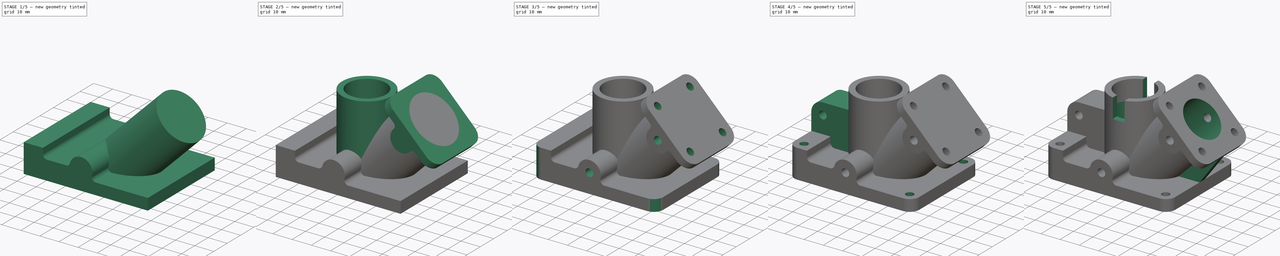
[diagram: build sequence overview — one tinted view per stage of 5, left to right]
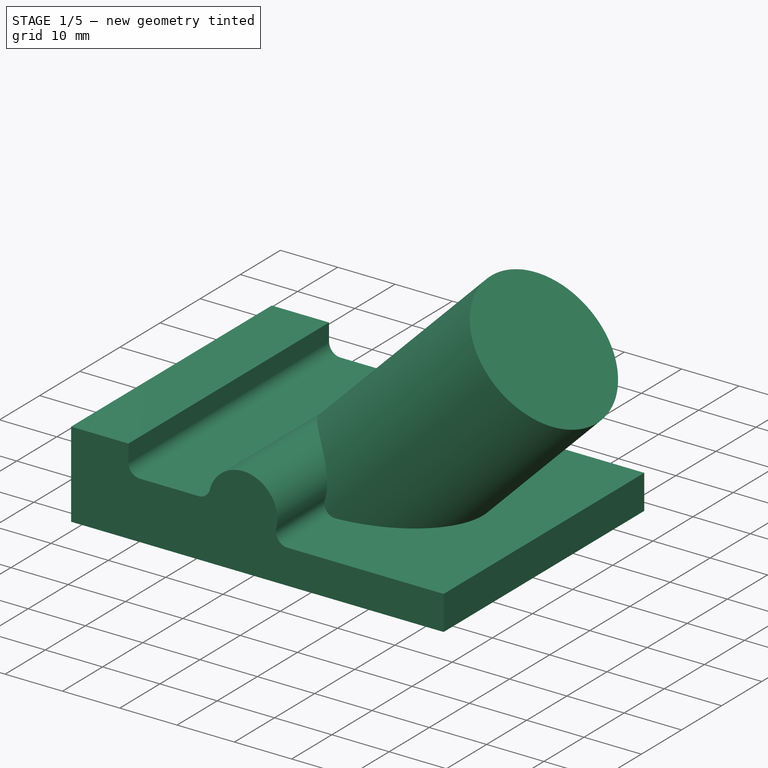
[diagram: stage 1 of 5 — iso view after this stage's code; geometry added in this stage tinted green]
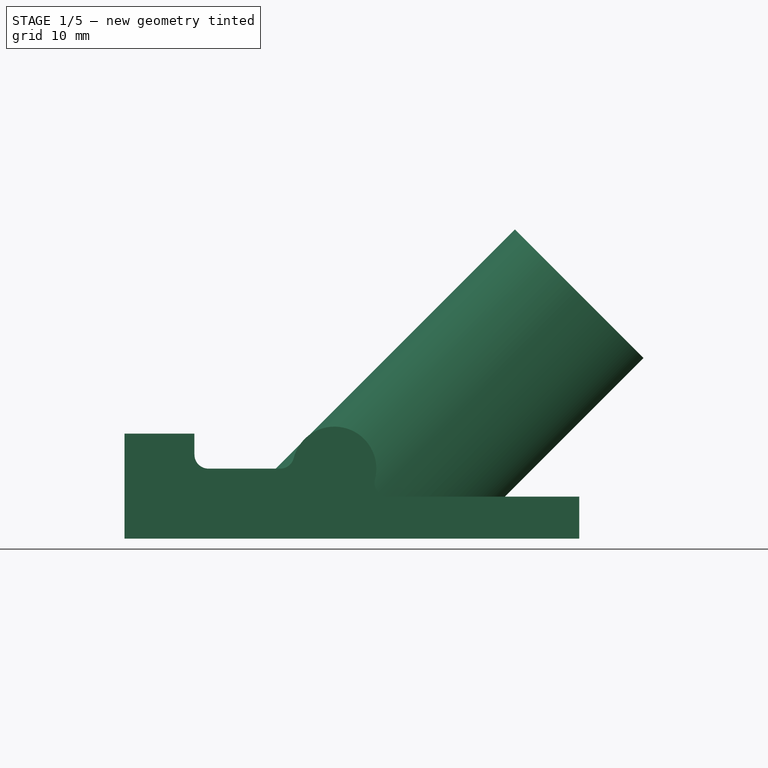
[diagram: stage 1 of 5 — front view after this stage's code; geometry added in this stage tinted green]
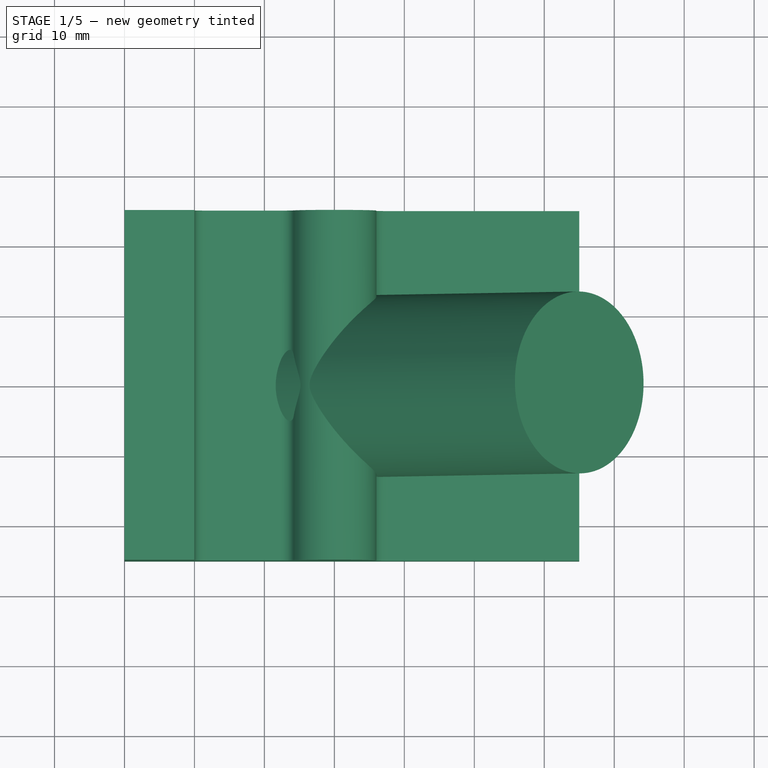
[diagram: stage 1 of 5 — top view after this stage's code; geometry added in this stage tinted green]
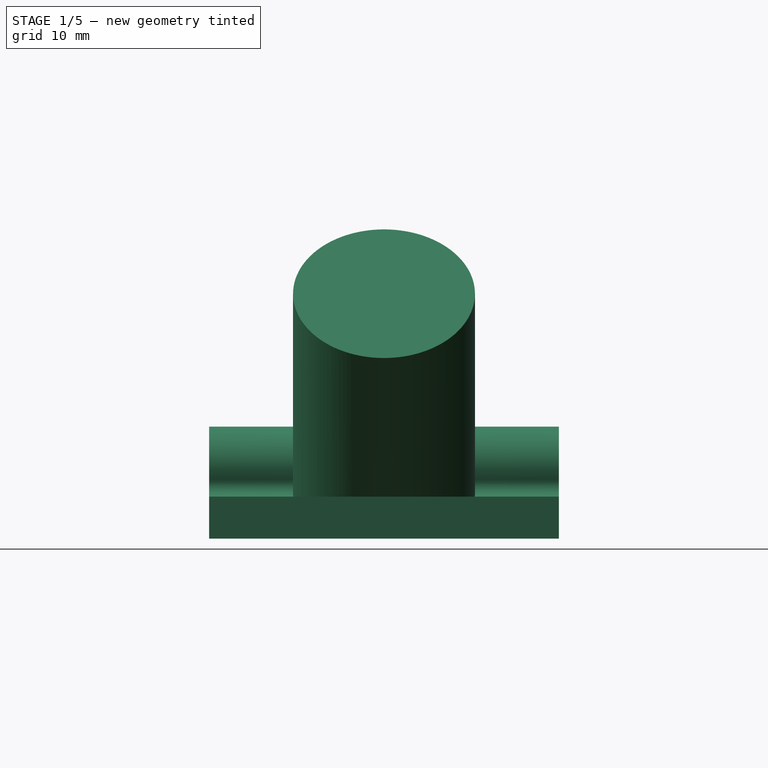
[diagram: stage 1 of 5 — right view after this stage's code; geometry added in this stage tinted green]
FCSTD DOCUMENT  (FreeCAD 0.21R33771 (Git))
Label: ex37
License: All rights reserved
LicenseURL: https://en.wikipedia.org/wiki/All_rights_reserved
objects: Sketcher::SketchObject×15, PartDesign::Pocket×8, PartDesign::Pad×6, PartDesign::Fillet×4, PartDesign::Plane×1, PartDesign::Body×1
note: 53 computed .brp shape members not serialized (recipe doc carries the construction recipe); baked Part::Feature solids carry a one-line shape summary decoded from their .brp

FEATURE [Sketcher::SketchObject] Sketch
  FullyConstrained = true
  MapMode = 5
  Placement = pos=(0,0,0) rot=(1,0,0;1.5708rad)
  Support = -> [XZ_Plane]
  sketch-geometry (8):
    g0: LineSegment StartX=0 StartY=0 StartZ=0 EndX=0 EndY=15 EndZ=0
    g1: LineSegment StartX=0 StartY=15 StartZ=0 EndX=10 EndY=15 EndZ=0
    g2: LineSegment StartX=10 StartY=15 StartZ=0 EndX=10 EndY=10 EndZ=0
    g3: LineSegment StartX=10 StartY=10 StartZ=0 EndX=24 EndY=10 EndZ=0
    g4: LineSegment StartX=34.4721 StartY=6 StartZ=0 EndX=65 EndY=6 EndZ=0
    g5: LineSegment StartX=65 StartY=6 StartZ=0 EndX=65 EndY=0 EndZ=0
    g6: LineSegment StartX=65 StartY=0 StartZ=0 EndX=0 EndY=0 EndZ=0
    g7: ArcOfCircle CenterX=30 CenterY=10 CenterZ=0 NormalX=0 NormalY=0 NormalZ=1 AngleXU=0 Radius=6 StartAngle=5.55346 EndAngle=9.42478
  constraints (24):
    c: Coincident(g-1,g0)
    c: PointOnObject(g0,g-2)
    c: Coincident(g0,g1)
    c: Horizontal(g1)
    c: Coincident(g1,g2)
    c: Vertical(g2)
    c: Coincident(g2,g3)
    c: Horizontal(g3)
    c: Horizontal(g4)
    c: Coincident(g4,g5)
    c: PointOnObject(g5,g-1)
    c: Vertical(g5)
    c: Coincident(g5,g6)
    c: Coincident(g6,g0)
    c: DistanceX(g6,g6) = 65
    c: Distance(g2,g6) = 10
    c: DistanceY(g0,g0) = 15
    c: DistanceX(g1,g1) = 10
    c: Distance(g7,g0) = 30
    c: Radius(g7) = 6
    c: Coincident(g7,g3)
    c: Coincident(g7,g4)
    c: DistanceY(g5,g5) = 6
    c: Horizontal(g7,g3)
FEATURE [PartDesign::Pad] Pad
  Direction = (0,-1,2e-16)
  Length = 50
  Length2 = 10
  Midplane = true
  Placement = pos=(0,0,0) rot=(1,0,0;1.5708rad)
  Profile = -> Sketch
  ReferenceAxis = -> Sketch [N_Axis]
  Type = 0
FEATURE [Sketcher::SketchObject] Sketch001
  FullyConstrained = true
  MapMode = 5
  Placement = pos=(0,0,0) rot=(1,0,0;1.5708rad)
  Support = -> [XZ_Plane]
  sketch-geometry (1):
    g0: LineSegment StartX=30 StartY=0 StartZ=0 EndX=65 EndY=35 EndZ=0
  constraints (4):
    c: PointOnObject(g0,g-1)
    c: DistanceY(g-1,g0) = 35
    c: Angle(g0,g-2) = 0.785398
    c: DistanceX(g-1,g0) = 30
FEATURE [PartDesign::Plane] DatumPlane
  Length = 65.7522
  MapMode = 7
  Placement = pos=(65,7.8e-15,35) rot=(0.678598,-0.678598,-0.281085;2.59356rad)
  ResizeMode = 0
  Support = -> [Sketch001]
  Width = 139.818
FEATURE [PartDesign::Fillet] Fillet
  Base = -> Pad [Edge1,Edge20]
  BaseFeature = -> Pad
  Placement = pos=(0,0,0) rot=(1,0,0;1.5708rad)
  Radius = 2
  SupportTransform = false
  UseAllEdges = false
FEATURE [PartDesign::Fillet] Fillet001
  Base = -> Fillet [Edge29]
  BaseFeature = -> Fillet
  Placement = pos=(0,0,0) rot=(1,0,0;1.5708rad)
  Radius = 2
  SupportTransform = false
  UseAllEdges = false
FEATURE [Sketcher::SketchObject] Sketch002
  FullyConstrained = true
  MapMode = 5
  Placement = pos=(65,7.8e-15,35) rot=(0.678598,-0.678598,-0.281085;2.59356rad)
  Support = -> [DatumPlane]
  sketch-geometry (1):
    g0: Circle CenterX=0 CenterY=0 CenterZ=0 NormalX=0 NormalY=0 NormalZ=1 AngleXU=0 Radius=13
  constraints (2):
    c: Coincident(g0,g-1)
    c: Radius(g0) = 13
FEATURE [PartDesign::Pad] Pad001
  BaseFeature = -> Fillet001
  Direction = (-0.707107,0,-0.707107)
  Length = 10
  Length2 = 10
  Placement = pos=(0,0,0) rot=(1,0,0;1.5708rad)
  Profile = -> Sketch002
  ReferenceAxis = -> Sketch002 [N_Axis]
  Type = 3
  UpToFace = -> Fillet001 [Face11]
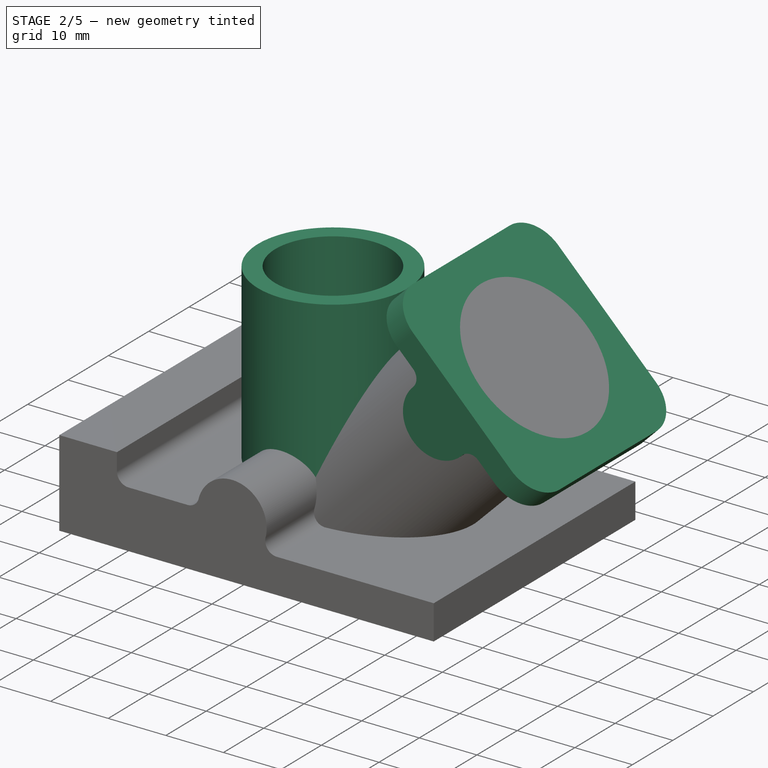
[diagram: stage 2 of 5 — iso view after this stage's code; geometry added in this stage tinted green]
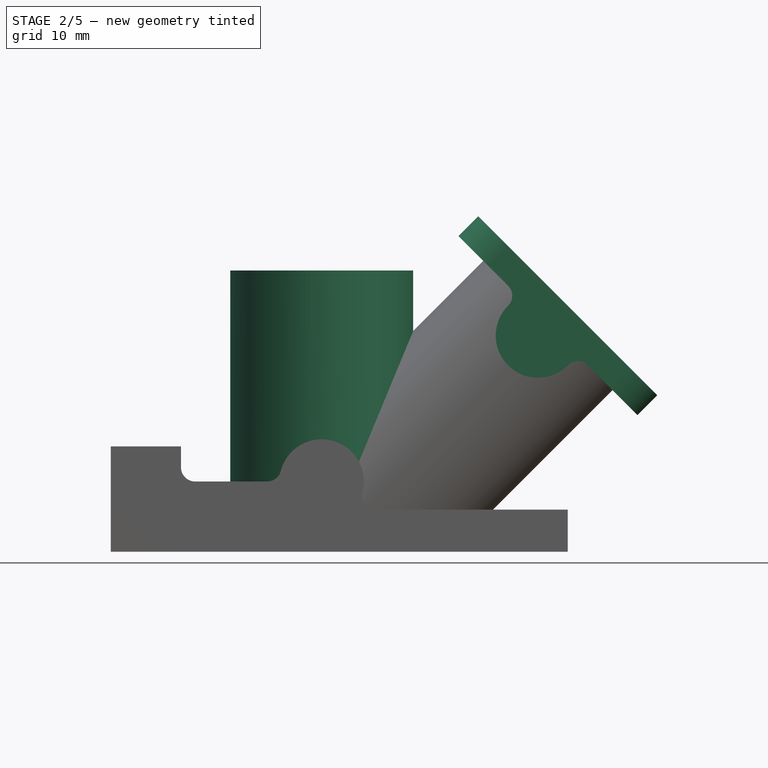
[diagram: stage 2 of 5 — front view after this stage's code; geometry added in this stage tinted green]
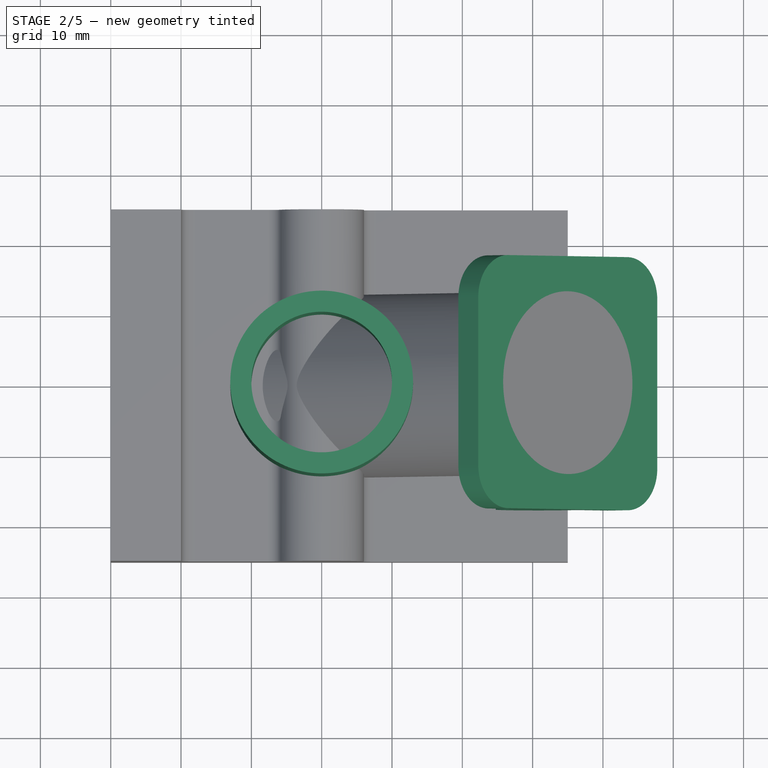
[diagram: stage 2 of 5 — top view after this stage's code; geometry added in this stage tinted green]
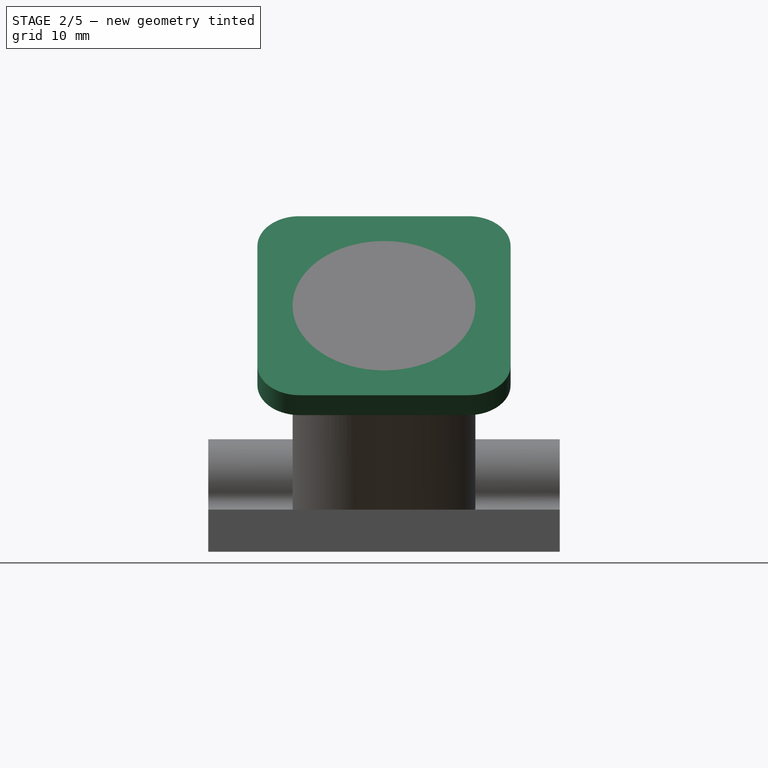
[diagram: stage 2 of 5 — right view after this stage's code; geometry added in this stage tinted green]
FEATURE [Sketcher::SketchObject] Sketch003
  FullyConstrained = true
  MapMode = 5
  Support = -> [XY_Plane]
  sketch-geometry (2):
    g0: Circle CenterX=30 CenterY=0 CenterZ=0 NormalX=0 NormalY=0 NormalZ=1 AngleXU=0 Radius=13
    g1: Circle CenterX=30 CenterY=0 CenterZ=0 NormalX=0 NormalY=0 NormalZ=1 AngleXU=0 Radius=10
  constraints (5):
    c: PointOnObject(g0,g-1)
    c: DistanceX(g-1,g0) = 30
    c: Radius(g0) = 13
    c: Coincident(g1,g0)
    c: Radius(g1) = 10
FEATURE [PartDesign::Pad] Pad002
  BaseFeature = -> Pad001
  Direction = (0,0,1)
  Length = 40
  Length2 = 10
  Placement = pos=(0,0,0) rot=(1,0,0;1.5708rad)
  Profile = -> Sketch003
  ReferenceAxis = -> Sketch003 [N_Axis]
  Type = 0
FEATURE [Sketcher::SketchObject] Sketch004
  ExternalGeometry = -> [Pad002,Sketch001]
  FullyConstrained = true
  MapMode = 5
  Placement = pos=(0,0,0) rot=(1,0,0;1.5708rad)
  Support = -> [XZ_Plane]
  sketch-geometry (8):
    g0: LineSegment StartX=52.2721 StartY=47.7279 StartZ=0 EndX=77.7279 EndY=22.2721 EndZ=0
    g1: LineSegment StartX=77.7279 StartY=22.2721 StartZ=0 EndX=74.8995 EndY=19.4437 EndZ=0
    g2: LineSegment StartX=74.8995 StartY=19.4437 StartZ=0 EndX=67.8284 EndY=26.5147 EndZ=0
    g3: LineSegment StartX=49.4437 StartY=44.8995 StartZ=0 EndX=52.2721 EndY=47.7279 EndZ=0
    g4: ArcOfCircle CenterX=60.7574 CenterY=30.7574 CenterZ=0 NormalX=0 NormalY=0 NormalZ=1 AngleXU=0 Radius=6 StartAngle=2.35619 EndAngle=5.49779
    g5: LineSegment StartX=56.5147 StartY=37.8284 StartZ=0 EndX=49.4437 EndY=44.8995 EndZ=0
    g6: ArcOfCircle CenterX=55.1005 CenterY=36.4142 CenterZ=0 NormalX=0 NormalY=0 NormalZ=1 AngleXU=0 Radius=2 StartAngle=5.49779 EndAngle=7.06858
    g7: ArcOfCircle CenterX=66.4142 CenterY=25.1005 CenterZ=0 NormalX=0 NormalY=0 NormalZ=1 AngleXU=0 Radius=2 StartAngle=0.785398 EndAngle=2.35619
  constraints (22):
    c: Coincident(g0,g1)
    c: Coincident(g1,g2)
    c: Coincident(g5,g3)
    c: Coincident(g3,g0)
    c: PointOnObject(g-3,g0)
    c: Parallel(g1,g3)
    c: Parallel(g2,g0)
    c: Perpendicular(g2,g1)
    c: Symmetric(g0,g0,g-4)
    c: PointOnObject(g4,g-4)
    c: Radius(g4) = 6
    c: Distance(g4,g-4) = 6
    c: Distance(g1) = 4
    c: Tangent(g4,g6) = 1.5708
    c: Tangent(g5,g6) = -1.5708
    c: Tangent(g4,g7) = 1.5708
    c: Tangent(g2,g7) = -1.5708
    c: Equal(g7,g6)
    c: Parallel(g5,g2)
    c: Distance(g3) = 4
    c: Radius(g6) = 2
    c: Distance(g0) = 36
FEATURE [PartDesign::Pad] Pad003
  BaseFeature = -> Pad002
  Direction = (0,-1,2e-16)
  Length = 36
  Length2 = 10
  Midplane = true
  Placement = pos=(0,0,0) rot=(1,0,0;1.5708rad)
  Profile = -> Sketch004
  ReferenceAxis = -> Sketch004 [N_Axis]
  Type = 0
FEATURE [PartDesign::Fillet] Fillet002
  Base = -> Pad003 [Edge98,Edge101,Edge103,Edge100]
  BaseFeature = -> Pad003
  Placement = pos=(0,0,0) rot=(1,0,0;1.5708rad)
  Radius = 6
  SupportTransform = false
  UseAllEdges = false
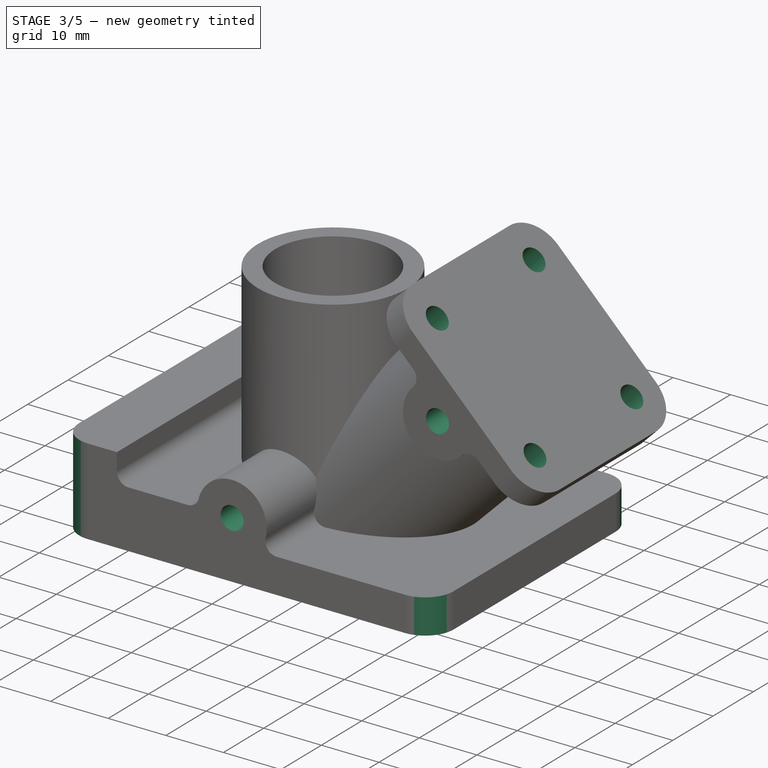
[diagram: stage 3 of 5 — iso view after this stage's code; geometry added in this stage tinted green]
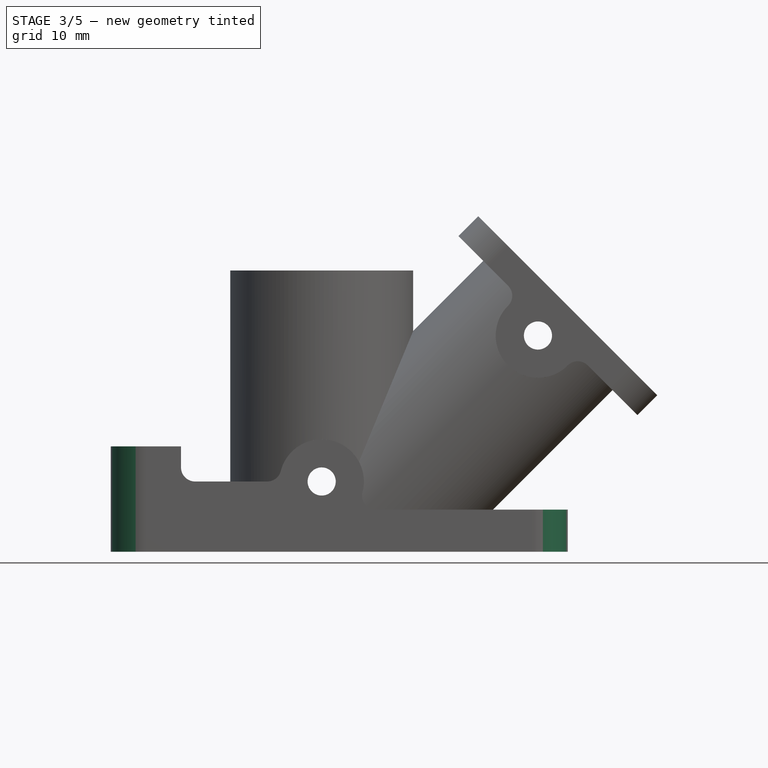
[diagram: stage 3 of 5 — front view after this stage's code; geometry added in this stage tinted green]
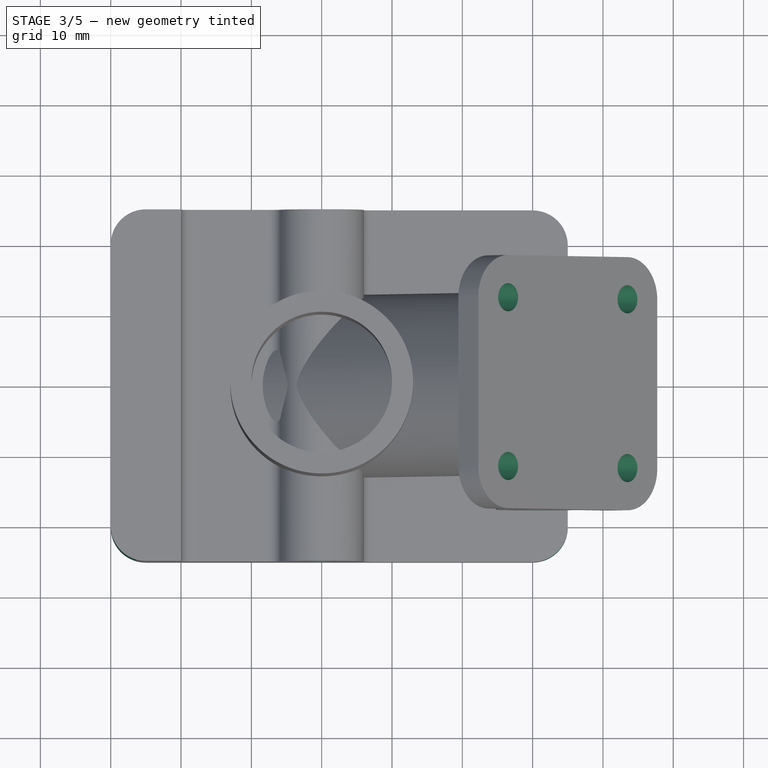
[diagram: stage 3 of 5 — top view after this stage's code; geometry added in this stage tinted green]
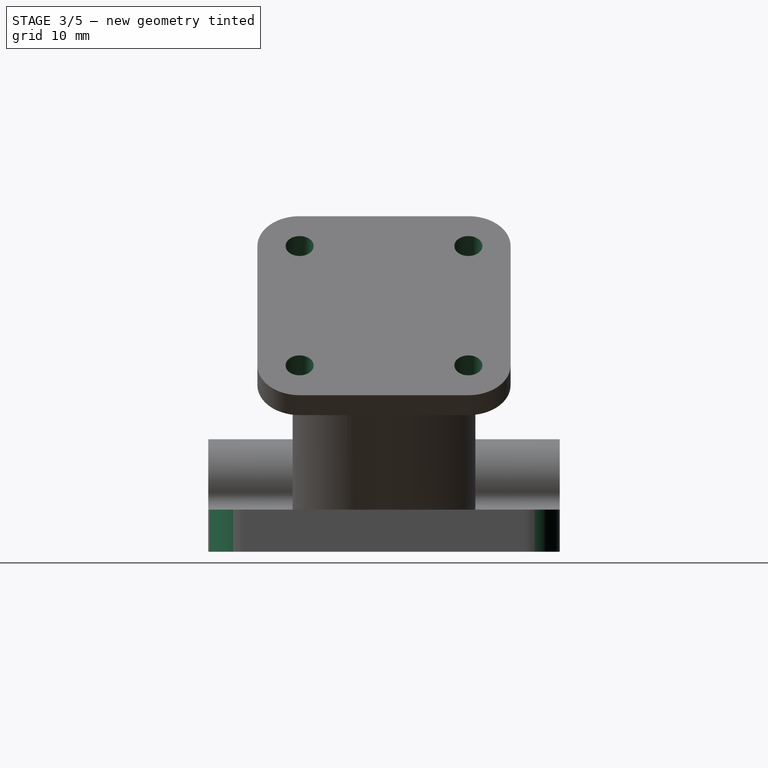
[diagram: stage 3 of 5 — right view after this stage's code; geometry added in this stage tinted green]
FEATURE [Sketcher::SketchObject] Sketch005
  ExternalGeometry = -> [Fillet002]
  FullyConstrained = true
  MapMode = 5
  Placement = pos=(50,1.11e-14,50) rot=(0.382683,0,0.92388;3.14159rad)
  Support = -> [Fillet002]
  sketch-geometry (4):
    g0: Circle CenterX=-33.2132 CenterY=12 CenterZ=0 NormalX=0 NormalY=0 NormalZ=1 AngleXU=0 Radius=2
    g1: Circle CenterX=-9.2132 CenterY=12 CenterZ=0 NormalX=0 NormalY=0 NormalZ=1 AngleXU=0 Radius=2
    g2: Circle CenterX=-9.2132 CenterY=-12 CenterZ=0 NormalX=0 NormalY=0 NormalZ=1 AngleXU=0 Radius=2
    g3: Circle CenterX=-33.2132 CenterY=-12 CenterZ=0 NormalX=0 NormalY=0 NormalZ=1 AngleXU=0 Radius=2
  constraints (8):
    c: Coincident(g0,g-4)
    c: Coincident(g1,g-3)
    c: Coincident(g2,g-6)
    c: Coincident(g3,g-5)
    c: Equal(g0,g1)
    c: Equal(g1,g2)
    c: Equal(g2,g3)
    c: Radius(g0) = 2
FEATURE [PartDesign::Pocket] Pocket
  BaseFeature = -> Fillet002
  Direction = (-0.707107,-2e-16,-0.707107)
  Length = 5
  Length2 = 5
  Placement = pos=(0,0,0) rot=(1,0,0;1.5708rad)
  Profile = -> Sketch005
  ReferenceAxis = -> Sketch005 [N_Axis]
  Type = 0
FEATURE [Sketcher::SketchObject] Sketch006
  ExternalGeometry = -> [Pocket]
  FullyConstrained = true
  MapMode = 5
  Placement = pos=(0,-18,4e-15) rot=(1,0,0;1.5708rad)
  Support = -> [Pocket]
  sketch-geometry (1):
    g0: Circle CenterX=60.7574 CenterY=30.7574 CenterZ=0 NormalX=0 NormalY=0 NormalZ=1 AngleXU=0 Radius=2
  constraints (2):
    c: Coincident(g0,g-3)
    c: Radius(g0) = 2
FEATURE [PartDesign::Pocket] Pocket001
  BaseFeature = -> Pocket
  Direction = (0,1,-2e-16)
  Length = 5
  Length2 = 5
  Placement = pos=(0,0,0) rot=(1,0,0;1.5708rad)
  Profile = -> Sketch006
  ReferenceAxis = -> Sketch006 [N_Axis]
  Type = 1
FEATURE [Sketcher::SketchObject] Sketch007
  ExternalGeometry = -> [Pocket001]
  FullyConstrained = true
  MapMode = 5
  Placement = pos=(0,-25,5.6e-15) rot=(1,0,0;1.5708rad)
  Support = -> [Pocket001]
  sketch-geometry (1):
    g0: Circle CenterX=30 CenterY=10 CenterZ=0 NormalX=0 NormalY=0 NormalZ=1 AngleXU=0 Radius=2
  constraints (2):
    c: Coincident(g0,g-3)
    c: Radius(g0) = 2
FEATURE [PartDesign::Pocket] Pocket002
  BaseFeature = -> Pocket001
  Direction = (0,1,-2e-16)
  Length = 5
  Length2 = 5
  Placement = pos=(0,0,0) rot=(1,0,0;1.5708rad)
  Profile = -> Sketch007
  ReferenceAxis = -> Sketch007 [N_Axis]
  Type = 1
FEATURE [PartDesign::Fillet] Fillet003
  Base = -> Pocket002 [Edge115,Edge104,Edge106,Edge113]
  BaseFeature = -> Pocket002
  Placement = pos=(0,0,0) rot=(1,0,0;1.5708rad)
  Radius = 5
  SupportTransform = false
  UseAllEdges = false
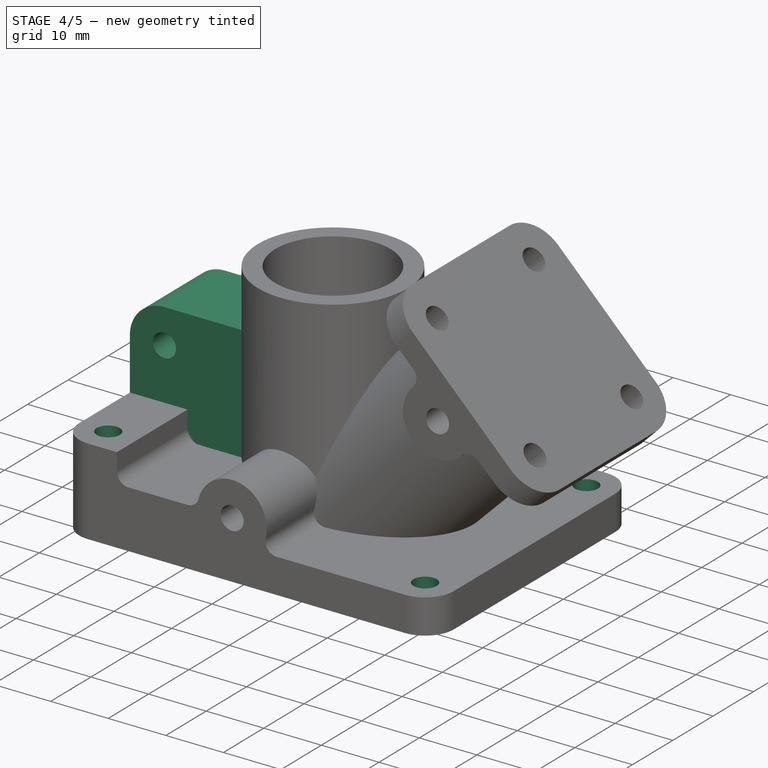
[diagram: stage 4 of 5 — iso view after this stage's code; geometry added in this stage tinted green]
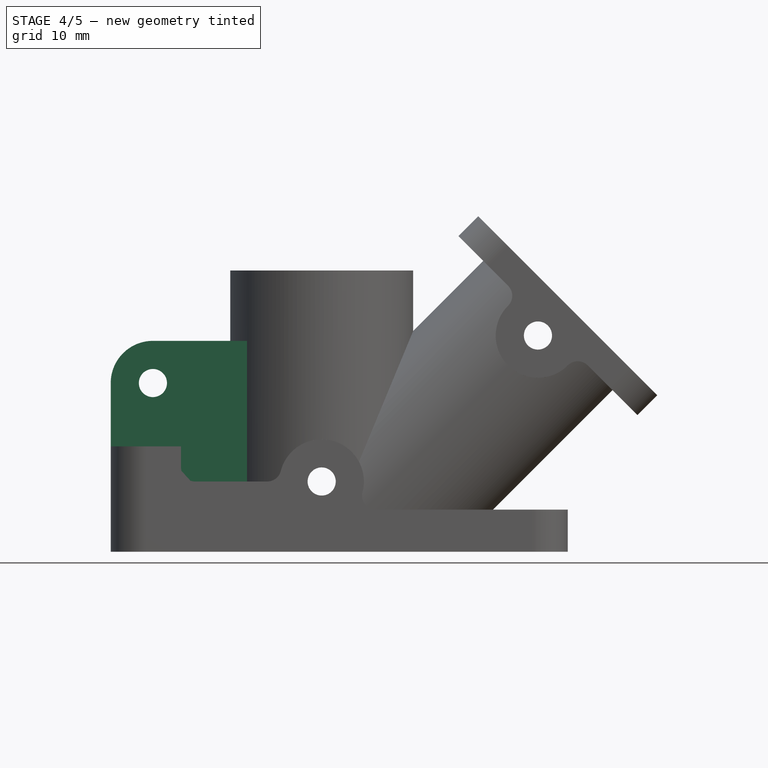
[diagram: stage 4 of 5 — front view after this stage's code; geometry added in this stage tinted green]
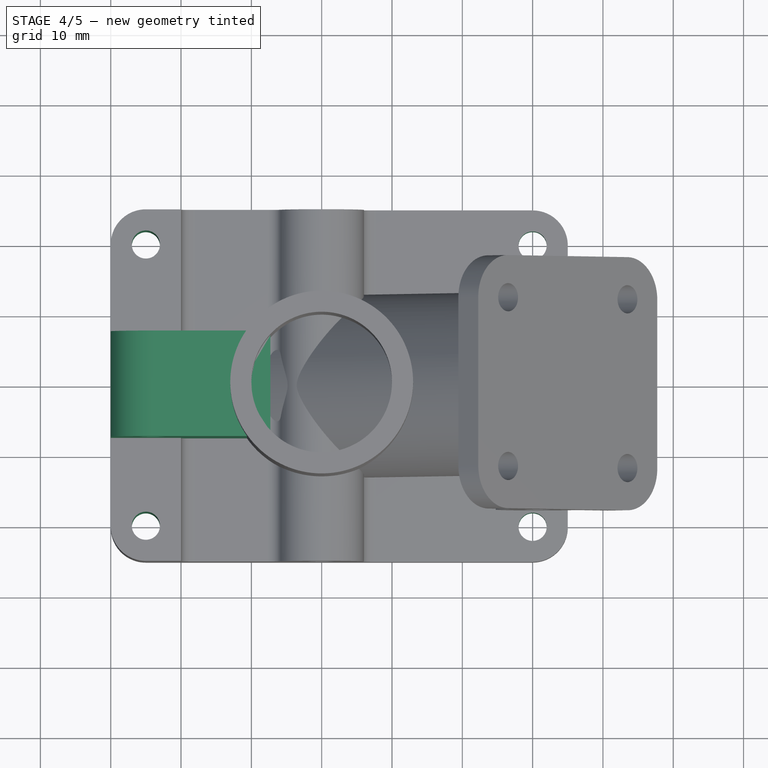
[diagram: stage 4 of 5 — top view after this stage's code; geometry added in this stage tinted green]
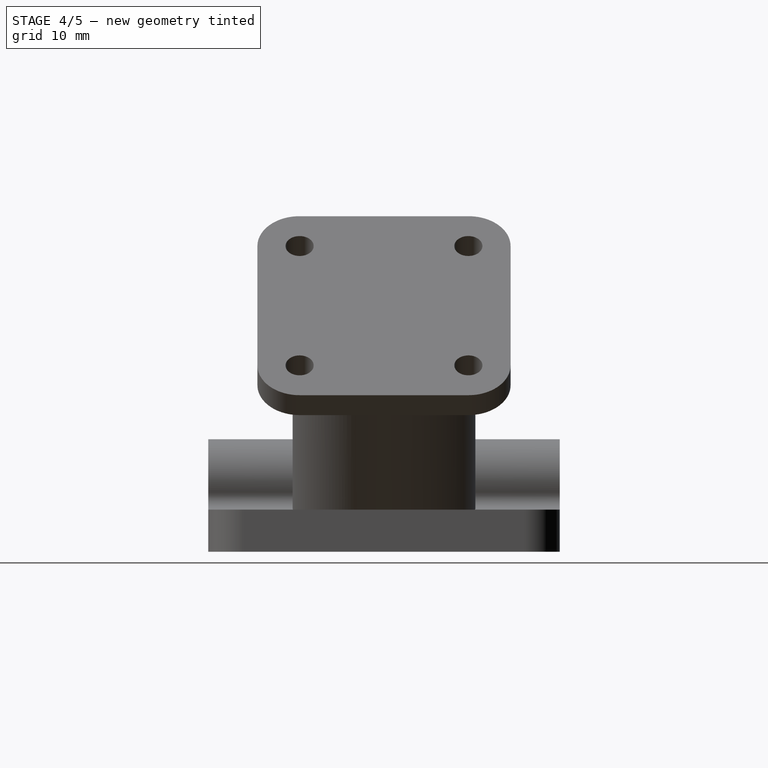
[diagram: stage 4 of 5 — right view after this stage's code; geometry added in this stage tinted green]
FEATURE [Sketcher::SketchObject] Sketch008
  ExternalGeometry = -> [Fillet003]
  FullyConstrained = true
  MapMode = 5
  Placement = pos=(0,3.3e-15,15) rot=(0,0,1;3.14159rad)
  Support = -> [Fillet003]
  sketch-geometry (2):
    g0: Circle CenterX=-5 CenterY=20 CenterZ=0 NormalX=0 NormalY=0 NormalZ=1 AngleXU=0 Radius=2
    g1: Circle CenterX=-5 CenterY=-20 CenterZ=0 NormalX=0 NormalY=0 NormalZ=1 AngleXU=0 Radius=2
  constraints (4):
    c: Coincident(g0,g-3)
    c: Coincident(g1,g-4)
    c: Equal(g1,g0)
    c: Radius(g0) = 2
FEATURE [PartDesign::Pocket] Pocket003
  BaseFeature = -> Fillet003
  Direction = (0,-2e-16,-1)
  Length = 18
  Length2 = 5
  Placement = pos=(0,0,0) rot=(1,0,0;1.5708rad)
  Profile = -> Sketch008
  ReferenceAxis = -> Sketch008 [N_Axis]
  Type = 0
FEATURE [Sketcher::SketchObject] Sketch009
  ExternalGeometry = -> [Pocket003]
  FullyConstrained = true
  MapMode = 5
  Placement = pos=(0,1.3e-15,6) rot=(0,0,1;3.14159rad)
  Support = -> [Pocket003]
  sketch-geometry (2):
    g0: Circle CenterX=-60 CenterY=20 CenterZ=0 NormalX=0 NormalY=0 NormalZ=1 AngleXU=0 Radius=2
    g1: Circle CenterX=-60 CenterY=-20 CenterZ=0 NormalX=0 NormalY=0 NormalZ=1 AngleXU=0 Radius=2
  constraints (4):
    c: Coincident(g0,g-3)
    c: Coincident(g1,g-4)
    c: Equal(g1,g0)
    c: Radius(g0) = 2
FEATURE [PartDesign::Pocket] Pocket004
  BaseFeature = -> Pocket003
  Direction = (0,-2e-16,-1)
  Length = 11
  Length2 = 5
  Placement = pos=(0,0,0) rot=(1,0,0;1.5708rad)
  Profile = -> Sketch009
  ReferenceAxis = -> Sketch009 [N_Axis]
  Type = 0
FEATURE [Sketcher::SketchObject] Sketch010
  FullyConstrained = false
  MapMode = 5
  Placement = pos=(0,0,0) rot=(1,0,0;1.5708rad)
  Support = -> [XZ_Plane]
  sketch-geometry (6):
    g0: LineSegment StartX=6 StartY=30 StartZ=0 EndX=22.6982 EndY=30 EndZ=0
    g1: LineSegment StartX=22.6982 StartY=30 StartZ=0 EndX=22.6982 EndY=0 EndZ=0
    g2: LineSegment StartX=22.6982 StartY=0 StartZ=0 EndX=0 EndY=0 EndZ=0
    g3: LineSegment StartX=0 StartY=0 StartZ=0 EndX=0 EndY=24 EndZ=0
    g4: ArcOfCircle CenterX=6 CenterY=24 CenterZ=0 NormalX=0 NormalY=0 NormalZ=1 AngleXU=0 Radius=6 StartAngle=1.5708 EndAngle=3.14159
    g5: Circle CenterX=6 CenterY=24 CenterZ=0 NormalX=0 NormalY=0 NormalZ=1 AngleXU=0 Radius=2
  constraints (14):
    c: Coincident(g0,g1)
    c: Coincident(g1,g2)
    c: Coincident(g2,g3)
    c: Horizontal(g0)
    c: Horizontal(g2)
    c: Vertical(g1)
    c: PointOnObject(g1,g-1)
    c: Tangent(g0,g4) = 1.5708
    c: Tangent(g3,g4) = 1.5708
    c: Radius(g4) = 6
    c: Tangent(g3,g-2)
    c: DistanceY(g2,g0) = 30
    c: Coincident(g5,g4)
    c: Radius(g5) = 2
FEATURE [PartDesign::Pad] Pad004
  BaseFeature = -> Pocket004
  Direction = (0,-1,2e-16)
  Length = 15
  Length2 = 10
  Midplane = true
  Placement = pos=(0,0,0) rot=(1,0,0;1.5708rad)
  Profile = -> Sketch010
  ReferenceAxis = -> Sketch010 [N_Axis]
  Type = 0
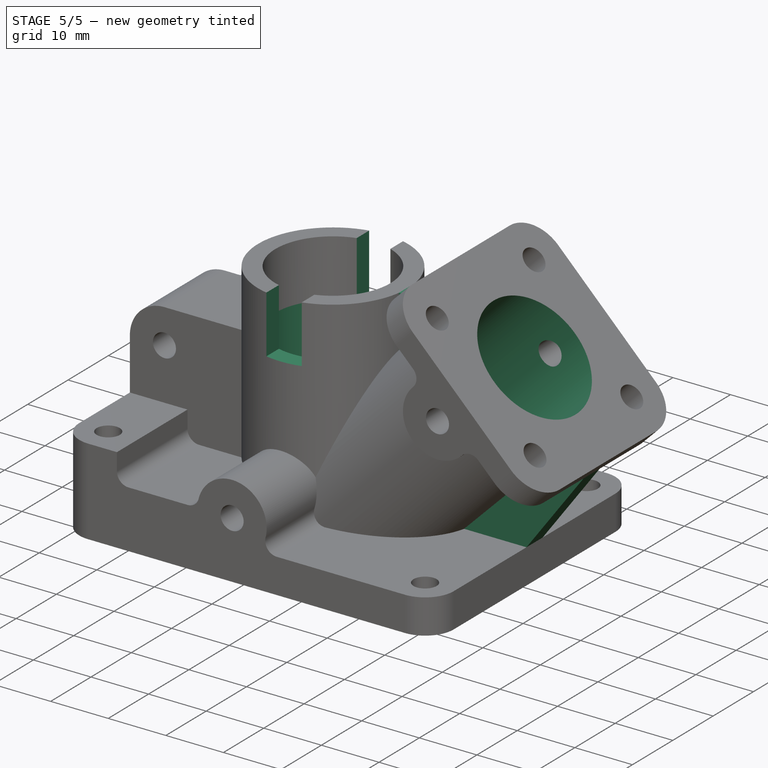
[diagram: stage 5 of 5 — iso view after this stage's code; geometry added in this stage tinted green]
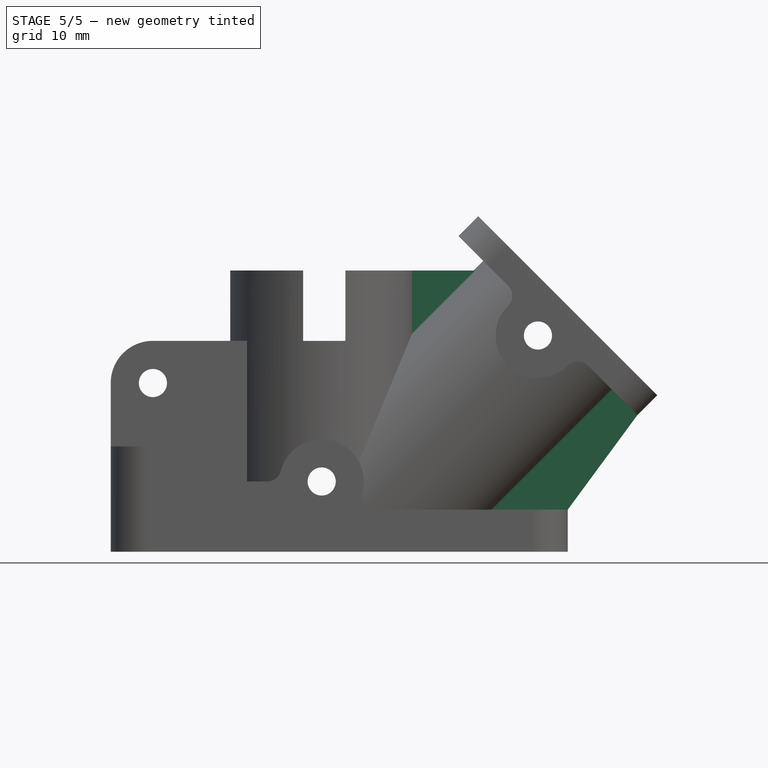
[diagram: stage 5 of 5 — front view after this stage's code; geometry added in this stage tinted green]
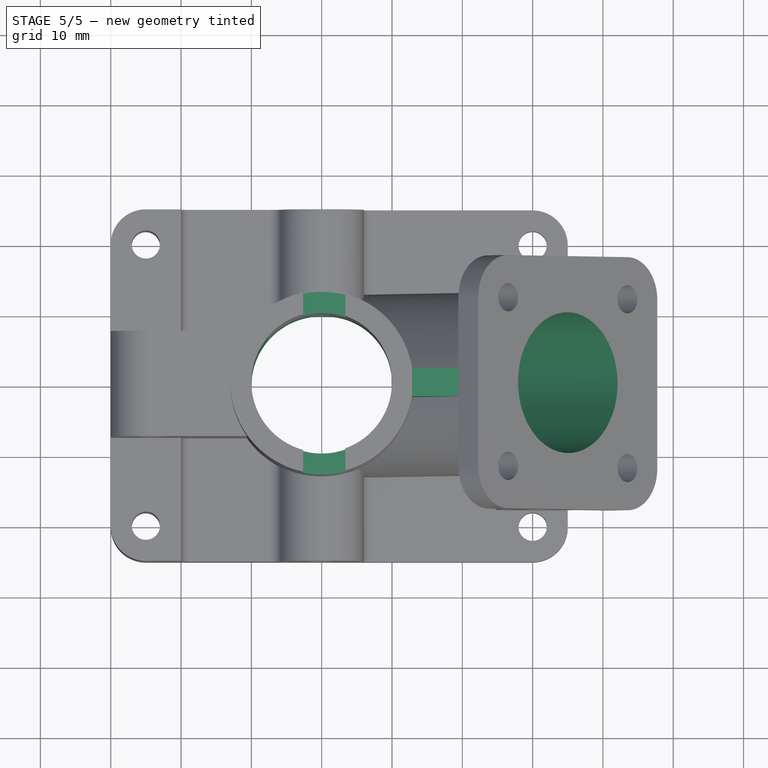
[diagram: stage 5 of 5 — top view after this stage's code; geometry added in this stage tinted green]
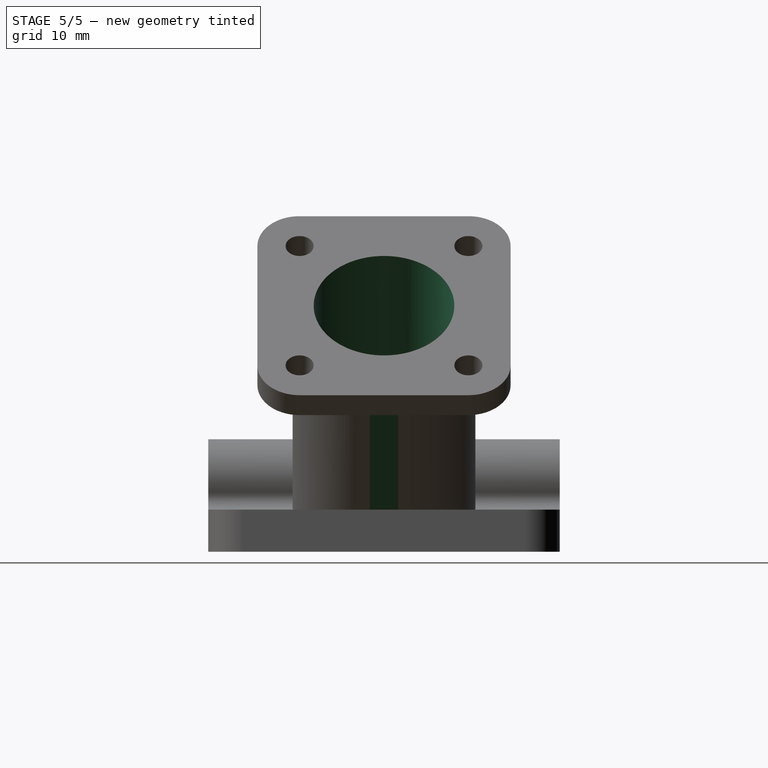
[diagram: stage 5 of 5 — right view after this stage's code; geometry added in this stage tinted green]
FEATURE [Sketcher::SketchObject] Sketch011
  ExternalGeometry = -> [Pad004]
  FullyConstrained = false
  MapMode = 5
  Placement = pos=(0,0,0) rot=(1,0,0;1.5708rad)
  Support = -> [XZ_Plane]
  sketch-geometry (4):
    g0: LineSegment StartX=27.3681 StartY=40 StartZ=0 EndX=33.3681 EndY=40 EndZ=0
    g1: LineSegment StartX=33.3681 StartY=40 StartZ=0 EndX=33.3681 EndY=30 EndZ=0
    g2: LineSegment StartX=33.3681 StartY=30 StartZ=0 EndX=27.3681 EndY=30 EndZ=0
    g3: LineSegment StartX=27.3681 StartY=30 StartZ=0 EndX=27.3681 EndY=40 EndZ=0
  constraints (11):
    c: Coincident(g0,g1)
    c: Coincident(g1,g2)
    c: Coincident(g2,g3)
    c: Coincident(g3,g0)
    c: Horizontal(g0)
    c: Horizontal(g2)
    c: Vertical(g1)
    c: Vertical(g3)
    c: DistanceX(g0,g0) = 6
    c: Horizontal(g0,g-3)
    c: DistanceY(g1,g1) = 10
FEATURE [PartDesign::Pocket] Pocket005
  BaseFeature = -> Pad004
  Direction = (0,1,-2e-16)
  Length = 5
  Length2 = 5
  Midplane = true
  Placement = pos=(0,0,0) rot=(1,0,0;1.5708rad)
  Profile = -> Sketch011
  ReferenceAxis = -> Sketch011 [N_Axis]
  Refine = true
  Type = 1
FEATURE [Sketcher::SketchObject] Sketch012
  ExternalGeometry = -> [Pocket005]
  FullyConstrained = false
  MapMode = 5
  Placement = pos=(0,0,0) rot=(1,0,0;1.5708rad)
  Support = -> [XZ_Plane]
  sketch-geometry (5):
    g0: LineSegment StartX=40.5283 StartY=40 StartZ=0 EndX=54.3431 EndY=40 EndZ=0
    g1: LineSegment StartX=54.3431 StartY=40 StartZ=0 EndX=74.8995 EndY=19.4437 EndZ=0
    g2: LineSegment StartX=74.8995 StartY=19.4437 StartZ=0 EndX=65 EndY=6 EndZ=0
    g3: LineSegment StartX=65 StartY=6 StartZ=0 EndX=37.746 EndY=6 EndZ=0
    g4: LineSegment StartX=37.746 StartY=6 StartZ=0 EndX=40.5283 EndY=40 EndZ=0
  constraints (11):
    c: Coincident(g0,g1)
    c: Coincident(g1,g-5)
    c: Coincident(g1,g2)
    c: Coincident(g2,g-7)
    c: Coincident(g2,g3)
    c: Coincident(g3,g-6)
    c: Coincident(g3,g4)
    c: Horizontal(g0)
    c: Coincident(g0,g4)
    c: PointOnObject(g0,g-3)
    c: Parallel(g1,g-5)
FEATURE [PartDesign::Pad] Pad005
  BaseFeature = -> Pocket005
  Direction = (0,-1,2e-16)
  Length = 4
  Length2 = 10
  Midplane = true
  Placement = pos=(0,0,0) rot=(1,0,0;1.5708rad)
  Profile = -> Sketch012
  ReferenceAxis = -> Sketch012 [N_Axis]
  Refine = true
  Type = 0
FEATURE [Sketcher::SketchObject] Sketch013
  ExternalGeometry = -> [Pad005]
  FullyConstrained = true
  MapMode = 5
  Placement = pos=(-1.5e-14,-6.5e-15,40) rot=(0,0,1;3.14159rad)
  Support = -> [Pad005]
  sketch-geometry (1):
    g0: Circle CenterX=-30 CenterY=0 CenterZ=0 NormalX=0 NormalY=0 NormalZ=1 AngleXU=0 Radius=10
  constraints (2):
    c: Coincident(g0,g-3)
    c: Radius(g0) = 10
FEATURE [PartDesign::Pocket] Pocket006
  BaseFeature = -> Pad005
  Direction = (4e-16,2e-16,-1)
  Length = 5
  Length2 = 5
  Placement = pos=(0,0,0) rot=(1,0,0;1.5708rad)
  Profile = -> Sketch013
  ReferenceAxis = -> Sketch013 [N_Axis]
  Type = 1
FEATURE [Sketcher::SketchObject] Sketch014
  ExternalGeometry = -> [Pocket006]
  FullyConstrained = false
  MapMode = 5
  Placement = pos=(50,1.11e-14,50) rot=(0.382683,0,0.92388;3.14159rad)
  Support = -> [Pocket006]
  sketch-geometry (1):
    g0: Circle CenterX=-21.2132 CenterY=0 CenterZ=0 NormalX=0 NormalY=0 NormalZ=1 AngleXU=0 Radius=10
  constraints (2):
    c: PointOnObject(g0,g-1)
    c: Radius(g0) = 10
FEATURE [PartDesign::Pocket] Pocket007
  BaseFeature = -> Pocket006
  Direction = (-0.707107,-2e-16,-0.707107)
  Length = 5
  Length2 = 5
  Placement = pos=(0,0,0) rot=(1,0,0;1.5708rad)
  Profile = -> Sketch014
  ReferenceAxis = -> Sketch014 [N_Axis]
  Type = 1
FEATURE [PartDesign::Body] Body
  Group = -> [Sketch,Pad,Sketch001,DatumPlane,Fillet,Fillet001,Sketch002,Pad001,Sketch003,Pad002,Sketch004,Pad003,Fillet002,Sketch005,Pocket,Sketch006,Pocket001,Sketch007,Pocket002,Fillet003,Sketch008,Pocket003,Sketch009,Pocket004,Sketch010,Pad004,Sketch011,Pocket005,Sketch012,Pad005,Sketch013,Pocket006,Sketch014,Pocket007]
  Origin = -> Origin
  Tip = -> Pocket007
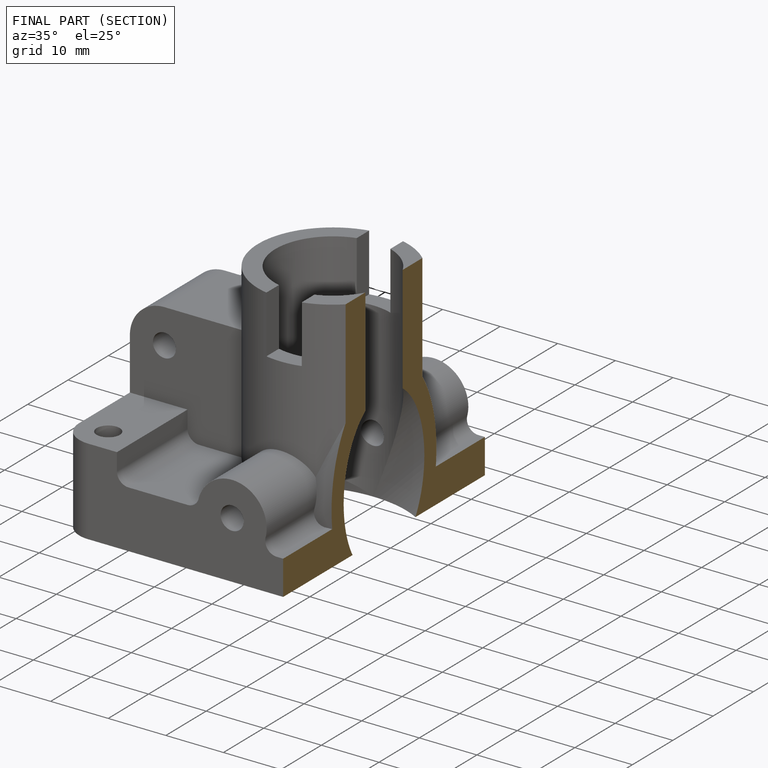
[diagram: finished part — half-section view (interior)]
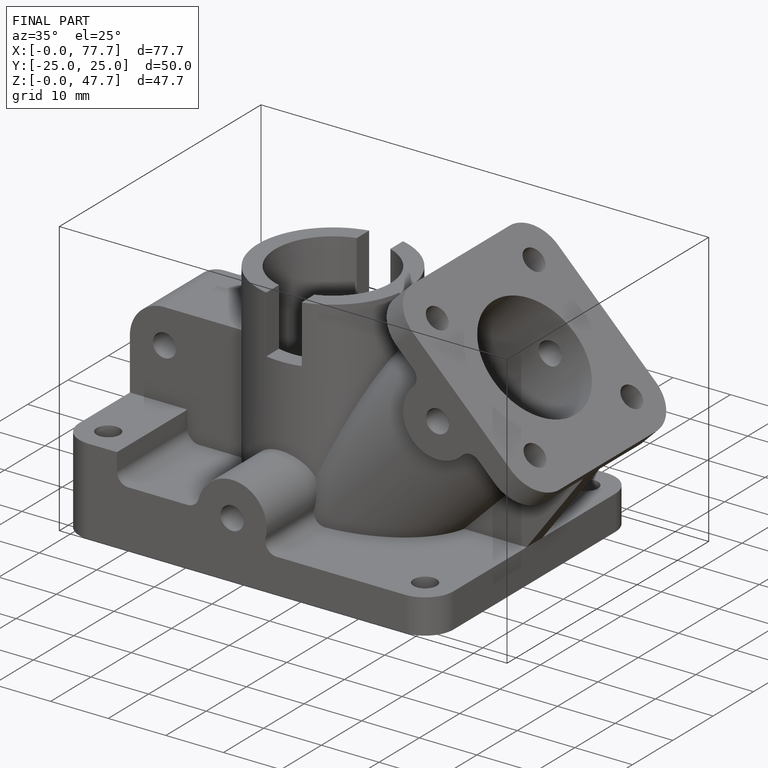
[diagram: finished part — iso view with bounding-box wireframe]
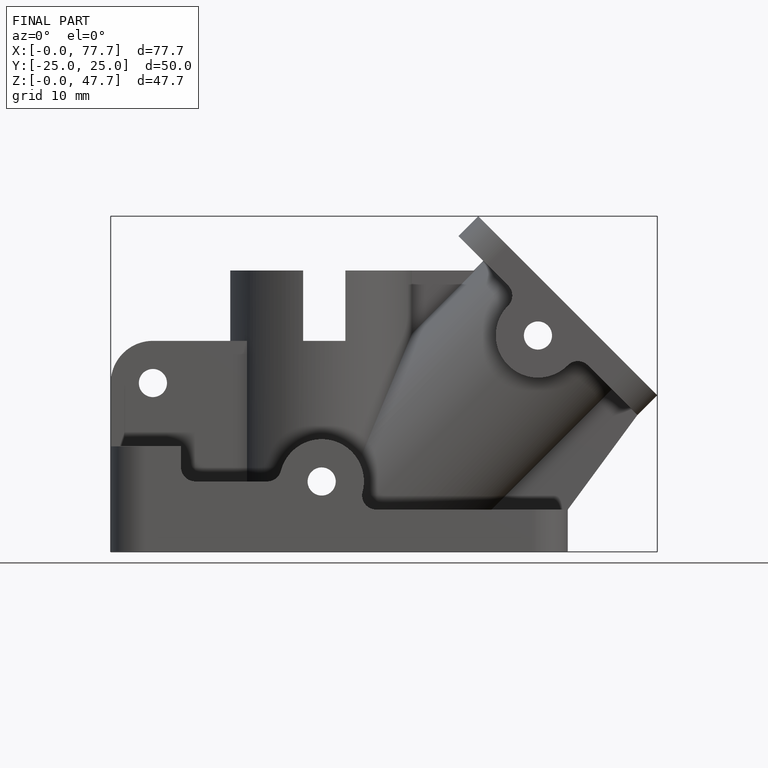
[diagram: finished part — front view with bounding-box wireframe]
